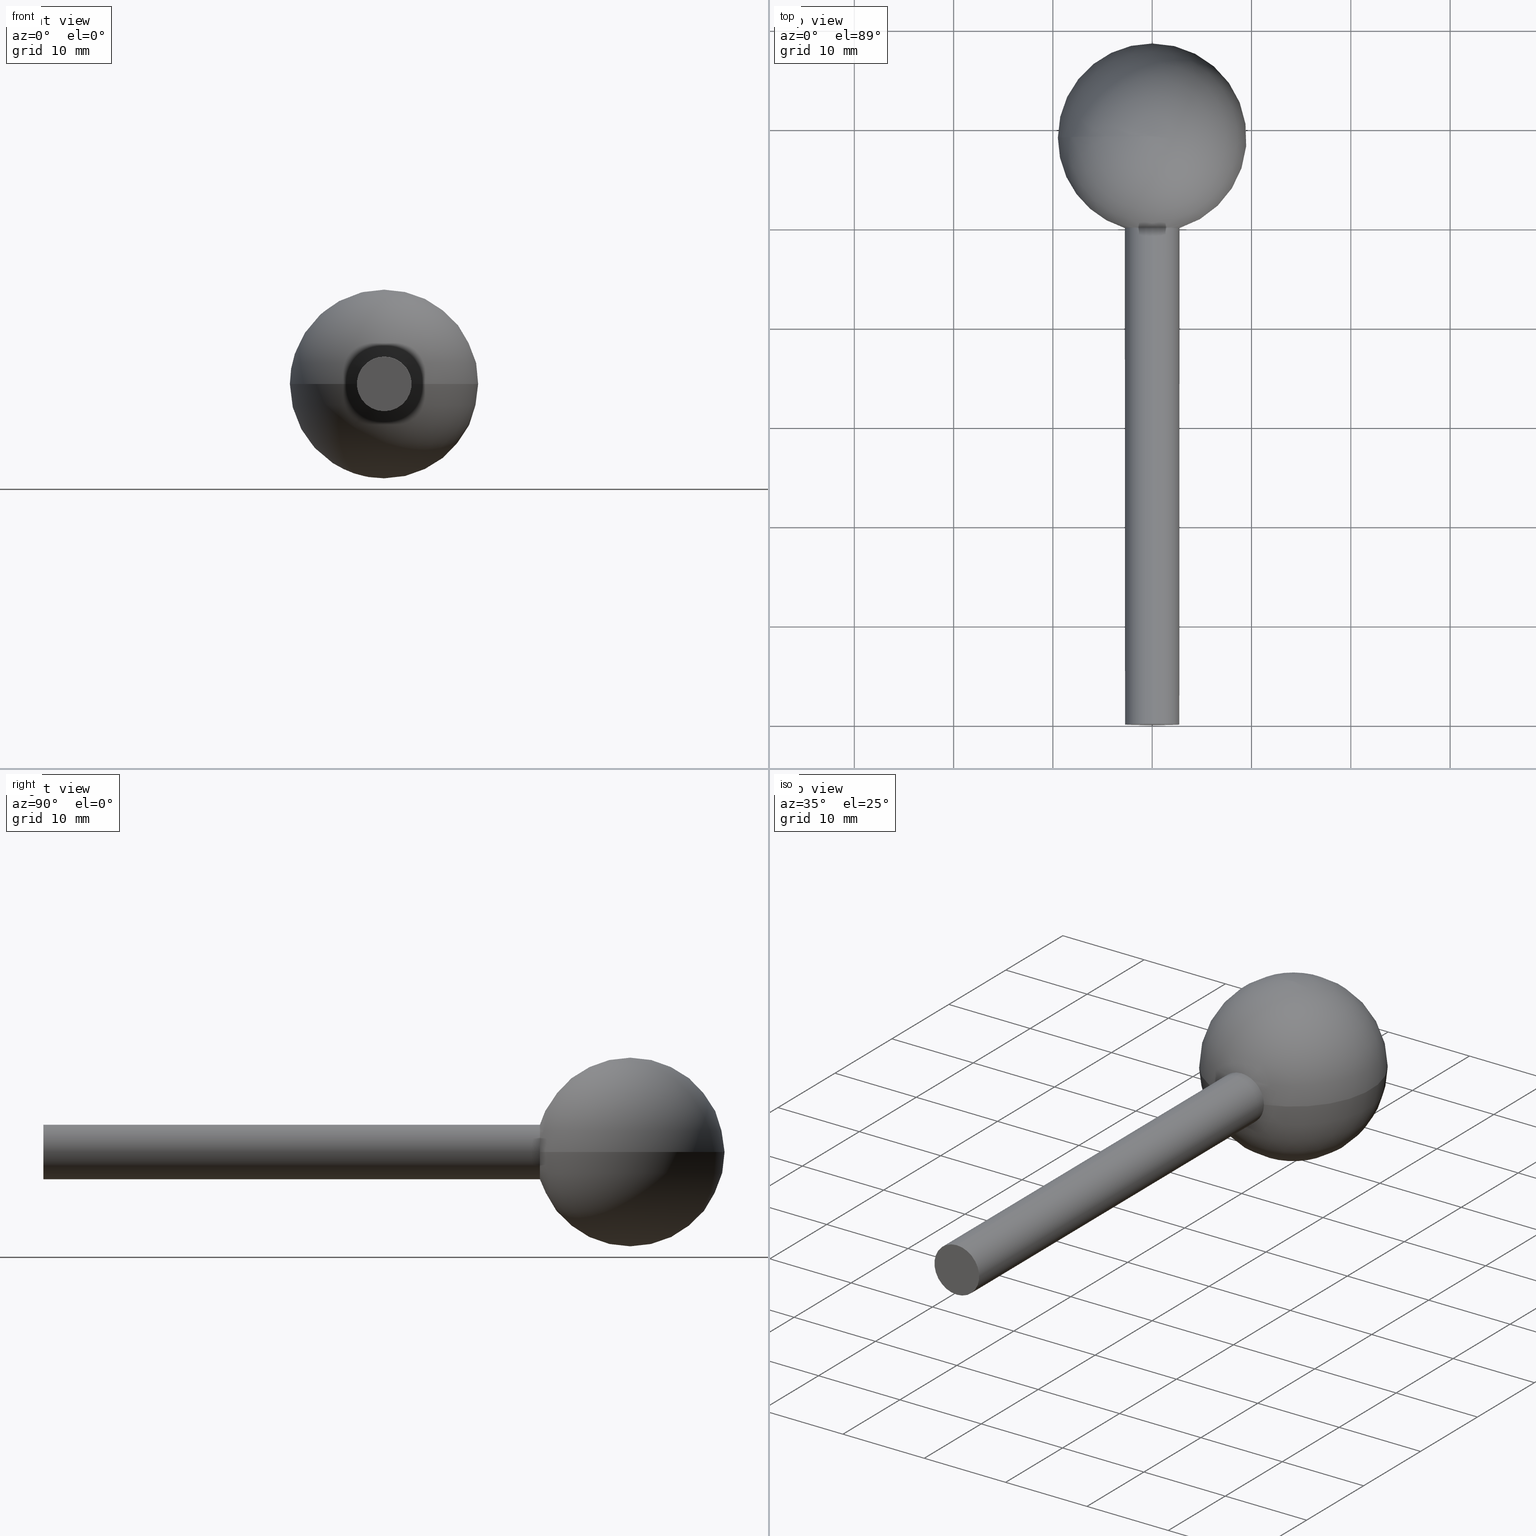
[diagram: canonical four-view strip — front | top / right | iso, engineering-drawing reading convention]
A machine part, canonical four-view strip (front | top / right | iso — engineering-drawing reading convention). The complete STEP part file that produces these views, byte-faithful:
ISO-10303-21;
HEADER;
FILE_DESCRIPTION (( 'STEP AP203' ),
    '1' );
FILE_NAME ('3504.step',
    '2015-09-17T14:56:49',
    ( '' ),
    ( '' ),
    'SwSTEP 2.0',
    'SolidWorks 2015',
    '' );
FILE_SCHEMA (( 'CONFIG_CONTROL_DESIGN' ));
ENDSEC;

DATA;
#1 = MANIFOLD_SOLID_BREP ( 'Rotation1', #23 ) ;
#2 = PRODUCT_DEFINITION ( 'UNKNOWN', '', #36, #40 ) ;
#3 = EDGE_CURVE ( 'NONE', #199, #202, #114, .T. ) ;
#4 = ORIENTED_EDGE ( 'NONE', *, *, #196, .F. ) ;
#5 = UNCERTAINTY_MEASURE_WITH_UNIT (LENGTH_MEASURE( 1.000000000000000100E-005 ), #129, 'distance_accuracy_value', 'NONE');
#6 = ORIENTED_EDGE ( 'NONE', *, *, #31, .T. ) ;
#7 = ORIENTED_EDGE ( 'NONE', *, *, #26, .T. ) ;
#8 = CC_DESIGN_APPROVAL ( #49, ( #139 ) ) ;
#9 = CC_DESIGN_PERSON_AND_ORGANIZATION_ASSIGNMENT ( #133, #89, ( #92 ) ) ;
#10 = AXIS2_PLACEMENT_3D ( 'NONE', #134, #93, #91 ) ;
#11 = ORIENTED_EDGE ( 'NONE', *, *, #28, .T. ) ;
#12 = ADVANCED_FACE ( 'NONE', ( #146 ), #112, .T. ) ;
#13 = ADVANCED_BREP_SHAPE_REPRESENTATION ( '3504', ( #1, #10 ), #32 ) ;
#14 = CC_DESIGN_APPROVAL ( #20, ( #36 ) ) ;
#15 = APPROVAL_DATE_TIME ( #22, #49 ) ;
#16 = ORIENTED_EDGE ( 'NONE', *, *, #210, .F. ) ;
#17 = CC_DESIGN_SECURITY_CLASSIFICATION ( #139, ( #36 ) ) ;
#18 = CIRCLE ( 'NONE', #138, 9.499999999999991100 ) ;
#19 = CIRCLE ( 'NONE', #68, 2.750000000000004900 ) ;
#20 = APPROVAL ( #69, 'UNSPECIFIED' ) ;
#21 = EDGE_CURVE ( 'NONE', #199, #174, #18, .T. ) ;
#22 = DATE_AND_TIME ( #25, #29 ) ;
#23 = CLOSED_SHELL ( 'NONE', ( #12, #27, #24, #50, #64 ) ) ;
#24 = ADVANCED_FACE ( 'NONE', ( #83 ), #176, .F. ) ;
#25 = CALENDAR_DATE ( 2015, 17, 9 ) ;
#26 = EDGE_CURVE ( 'NONE', #202, #104, #62, .T. ) ;
#27 = ADVANCED_FACE ( 'NONE', ( #170 ), #192, .T. ) ;
#28 = EDGE_CURVE ( 'NONE', #220, #175, #212, .T. ) ;
#29 = LOCAL_TIME ( 16, 56, 49.00000000000000000, #30 ) ;
#30 = COORDINATED_UNIVERSAL_TIME_OFFSET ( 1, 0, .AHEAD. ) ;
#31 = EDGE_CURVE ( 'NONE', #137, #202, #215, .T. ) ;
#32 =( GEOMETRIC_REPRESENTATION_CONTEXT ( 3 ) GLOBAL_UNCERTAINTY_ASSIGNED_CONTEXT ( ( #5 ) ) GLOBAL_UNIT_ASSIGNED_CONTEXT ( ( #129, #103, #100 ) ) REPRESENTATION_CONTEXT ( 'NONE', 'WORKASPACE' ) );
#33 = APPROVAL_PERSON_ORGANIZATION ( #34, #49, #98 ) ;
#34 = PERSON_AND_ORGANIZATION ( #86, #189 ) ;
#35 = AXIS2_PLACEMENT_3D ( 'NONE', #120, #118, #117 ) ;
#36 = PRODUCT_DEFINITION_FORMATION_WITH_SPECIFIED_SOURCE ( 'ANY', '', #92, .NOT_KNOWN. ) ;
#37 = DATE_AND_TIME ( #38, #39 ) ;
#38 = CALENDAR_DATE ( 2015, 17, 9 ) ;
#39 = LOCAL_TIME ( 16, 56, 49.00000000000000000, #41 ) ;
#40 = DESIGN_CONTEXT ( 'detailed design', #88, 'design' ) ;
#41 = COORDINATED_UNIVERSAL_TIME_OFFSET ( 1, 0, .AHEAD. ) ;
#42 = PERSON_AND_ORGANIZATION ( #86, #189 ) ;
#43 = PERSON_AND_ORGANIZATION ( #86, #189 ) ;
#44 = PERSON_AND_ORGANIZATION ( #86, #189 ) ;
#45 = AXIS2_PLACEMENT_3D ( 'NONE', #208, #99, #190 ) ;
#46 = APPROVAL_DATE_TIME ( #48, #20 ) ;
#47 = EDGE_LOOP ( 'NONE', ( #97, #11 ) ) ;
#48 = DATE_AND_TIME ( #55, #59 ) ;
#49 = APPROVAL ( #119, 'UNSPECIFIED' ) ;
#50 = ADVANCED_FACE ( 'NONE', ( #211 ), #206, .T. ) ;
#51 = CC_DESIGN_DATE_AND_TIME_ASSIGNMENT ( #37, #53, ( #139 ) ) ;
#52 = AXIS2_PLACEMENT_3D ( 'NONE', #164, #162, #161 ) ;
#53 = DATE_TIME_ROLE ( 'classification_date' ) ;
#54 = PERSON_AND_ORGANIZATION_ROLE ( 'classification_officer' ) ;
#55 = CALENDAR_DATE ( 2015, 17, 9 ) ;
#56 = AXIS2_PLACEMENT_3D ( 'NONE', #197, #209, #191 ) ;
#57 = ORIENTED_EDGE ( 'NONE', *, *, #155, .T. ) ;
#58 = SECURITY_CLASSIFICATION_LEVEL ( 'unclassified' ) ;
#59 = LOCAL_TIME ( 16, 56, 49.00000000000000000, #183 ) ;
#60 = PERSON_AND_ORGANIZATION_ROLE ( 'design_supplier' ) ;
#61 = PERSON_AND_ORGANIZATION_ROLE ( 'creator' ) ;
#62 = CIRCLE ( 'NONE', #108, 2.750000000000004900 ) ;
#63 = ORIENTED_EDGE ( 'NONE', *, *, #21, .F. ) ;
#64 = ADVANCED_FACE ( 'NONE', ( #151 ), #157, .T. ) ;
#65 = DIRECTION ( 'NONE',  ( -0.0000000000000000000, -0.0000000000000000000, -1.000000000000000000 ) ) ;
#66 = APPROVAL_ROLE ( '' ) ;
#67 = ORIENTED_EDGE ( 'NONE', *, *, #155, .F. ) ;
#68 = AXIS2_PLACEMENT_3D ( 'NONE', #127, #126, #125 ) ;
#69 = APPROVAL_STATUS ( 'not_yet_approved' ) ;
#70 = AXIS2_PLACEMENT_3D ( 'NONE', #195, #194, #193 ) ;
#71 = ORIENTED_EDGE ( 'NONE', *, *, #31, .F. ) ;
#72 = ORIENTED_EDGE ( 'NONE', *, *, #21, .T. ) ;
#73 = ORIENTED_EDGE ( 'NONE', *, *, #3, .F. ) ;
#74 = CC_DESIGN_DATE_AND_TIME_ASSIGNMENT ( #101, #76, ( #2 ) ) ;
#75 = ORIENTED_EDGE ( 'NONE', *, *, #26, .F. ) ;
#76 = DATE_TIME_ROLE ( 'creation_date' ) ;
#77 = AXIS2_PLACEMENT_3D ( 'NONE', #132, #65, #213 ) ;
#78 = PERSON_AND_ORGANIZATION_ROLE ( 'creator' ) ;
#79 = APPROVAL_ROLE ( '' ) ;
#80 = ORIENTED_EDGE ( 'NONE', *, *, #3, .T. ) ;
#81 = APPROVAL_STATUS ( 'not_yet_approved' ) ;
#82 = AXIS2_PLACEMENT_3D ( 'NONE', #204, #203, #198 ) ;
#83 = FACE_OUTER_BOUND ( 'NONE', #47, .T. ) ;
#84 = APPLICATION_PROTOCOL_DEFINITION ( 'international standard', 'config_control_design', 1994, #88 ) ;
#85 = CC_DESIGN_PERSON_AND_ORGANIZATION_ASSIGNMENT ( #110, #78, ( #2 ) ) ;
#86 = PERSON ( 'UNSPECIFIED', 'UNSPECIFIED', 'UNSPECIFIED', ('UNSPECIFIED'), ('UNSPECIFIED'), ('UNSPECIFIED') ) ;
#87 = EDGE_LOOP ( 'NONE', ( #73, #72, #140, #75 ) ) ;
#88 = APPLICATION_CONTEXT ( 'configuration controlled 3d designs of mechanical parts and assemblies' ) ;
#89 = PERSON_AND_ORGANIZATION_ROLE ( 'design_owner' ) ;
#90 = MECHANICAL_CONTEXT ( 'NONE', #94, 'mechanical' ) ;
#91 = DIRECTION ( 'NONE',  ( 1.000000000000000000, 0.0000000000000000000, 0.0000000000000000000 ) ) ;
#92 = PRODUCT ( '3504', '3504', '', ( #90 ) ) ;
#93 = DIRECTION ( 'NONE',  ( 0.0000000000000000000, 0.0000000000000000000, 1.000000000000000000 ) ) ;
#94 = APPLICATION_CONTEXT ( 'configuration controlled 3d designs of mechanical parts and assemblies' ) ;
#95 = EDGE_LOOP ( 'NONE', ( #142, #201, #124, #67, #147 ) ) ;
#96 = APPLICATION_PROTOCOL_DEFINITION ( 'international standard', 'config_control_design', 1994, #94 ) ;
#97 = ORIENTED_EDGE ( 'NONE', *, *, #216, .T. ) ;
#98 = APPROVAL_ROLE ( '' ) ;
#99 = DIRECTION ( 'NONE',  ( -0.0000000000000000000, -1.000000000000000000, -0.0000000000000000000 ) ) ;
#100 =( NAMED_UNIT ( * ) SI_UNIT ( $, .STERADIAN. ) SOLID_ANGLE_UNIT ( ) );
#101 = DATE_AND_TIME ( #102, #107 ) ;
#102 = CALENDAR_DATE ( 2015, 17, 9 ) ;
#103 =( NAMED_UNIT ( * ) PLANE_ANGLE_UNIT ( ) SI_UNIT ( $, .RADIAN. ) );
#104 = VERTEX_POINT ( 'NONE', #168 ) ;
#105 = EDGE_LOOP ( 'NONE', ( #4, #6, #7, #57, #113 ) ) ;
#106 = AXIS2_PLACEMENT_3D ( 'NONE', #149, #221, #159 ) ;
#107 = LOCAL_TIME ( 16, 56, 49.00000000000000000, #109 ) ;
#108 = AXIS2_PLACEMENT_3D ( 'NONE', #219, #217, #214 ) ;
#109 = COORDINATED_UNIVERSAL_TIME_OFFSET ( 1, 0, .AHEAD. ) ;
#110 = PERSON_AND_ORGANIZATION ( #86, #189 ) ;
#111 = CC_DESIGN_PERSON_AND_ORGANIZATION_ASSIGNMENT ( #43, #60, ( #36 ) ) ;
#112 = CYLINDRICAL_SURFACE ( 'NONE', #121, 2.750000000000002700 ) ;
#113 = ORIENTED_EDGE ( 'NONE', *, *, #28, .F. ) ;
#114 = CIRCLE ( 'NONE', #187, 9.499999999999991100 ) ;
#115 = APPROVAL_DATE_TIME ( #116, #169 ) ;
#116 = DATE_AND_TIME ( #188, #185 ) ;
#117 = DIRECTION ( 'NONE',  ( 0.0000000000000000000, 0.0000000000000000000, -1.000000000000000000 ) ) ;
#118 = DIRECTION ( 'NONE',  ( -0.0000000000000000000, -1.000000000000000000, -0.0000000000000000000 ) ) ;
#119 = APPROVAL_STATUS ( 'not_yet_approved' ) ;
#120 = CARTESIAN_POINT ( 'NONE',  ( 0.0000000000000000000, -3.367778697655221000E-016, 0.0000000000000000000 ) ) ;
#121 = AXIS2_PLACEMENT_3D ( 'NONE', #167, #128, #182 ) ;
#122 = CARTESIAN_POINT ( 'NONE',  ( 2.750000000000007500, 50.00000000000001400, -3.367778697655230400E-016 ) ) ;
#123 = APPROVAL_PERSON_ORGANIZATION ( #131, #169, #79 ) ;
#124 = ORIENTED_EDGE ( 'NONE', *, *, #216, .F. ) ;
#125 = DIRECTION ( 'NONE',  ( 0.0000000000000000000, 0.0000000000000000000, -1.000000000000000000 ) ) ;
#126 = DIRECTION ( 'NONE',  ( -0.0000000000000000000, -1.000000000000000000, -0.0000000000000000000 ) ) ;
#127 = CARTESIAN_POINT ( 'NONE',  ( 0.0000000000000000000, 50.00000000000001400, 0.0000000000000000000 ) ) ;
#128 = DIRECTION ( 'NONE',  ( -0.0000000000000000000, -1.000000000000000000, -0.0000000000000000000 ) ) ;
#129 =( LENGTH_UNIT ( ) NAMED_UNIT ( * ) SI_UNIT ( .MILLI., .METRE. ) );
#130 = CARTESIAN_POINT ( 'NONE',  ( 0.0000000000000000000, 59.09326673973661300, 0.0000000000000000000 ) ) ;
#131 = PERSON_AND_ORGANIZATION ( #86, #189 ) ;
#132 = CARTESIAN_POINT ( 'NONE',  ( 0.0000000000000000000, 59.09326673973661300, 0.0000000000000000000 ) ) ;
#133 = PERSON_AND_ORGANIZATION ( #86, #189 ) ;
#134 = CARTESIAN_POINT ( 'NONE',  ( 0.0000000000000000000, 0.0000000000000000000, 0.0000000000000000000 ) ) ;
#135 = CARTESIAN_POINT ( 'NONE',  ( 3.367778697655223000E-016, -3.367778697655221000E-016, 2.750000000000000000 ) ) ;
#136 = DIRECTION ( 'NONE',  ( -1.000000000000000000, 0.0000000000000000000, 1.224646799147353200E-016 ) ) ;
#137 = VERTEX_POINT ( 'NONE', #179 ) ;
#138 = AXIS2_PLACEMENT_3D ( 'NONE', #130, #160, #136 ) ;
#139 = SECURITY_CLASSIFICATION ( '', '', #58 ) ;
#140 = ORIENTED_EDGE ( 'NONE', *, *, #150, .F. ) ;
#141 = CARTESIAN_POINT ( 'NONE',  ( -2.750000000000007500, 50.00000000000001400, 0.0000000000000000000 ) ) ;
#142 = ORIENTED_EDGE ( 'NONE', *, *, #210, .T. ) ;
#143 = VECTOR ( 'NONE', #154, 1000.000000000000000 ) ;
#144 = LINE ( 'NONE', #166, #143 ) ;
#145 = SHAPE_DEFINITION_REPRESENTATION ( #173, #13 ) ;
#146 = FACE_OUTER_BOUND ( 'NONE', #95, .T. ) ;
#147 = ORIENTED_EDGE ( 'NONE', *, *, #150, .T. ) ;
#148 = VECTOR ( 'NONE', #186, 1000.000000000000000 ) ;
#149 = CARTESIAN_POINT ( 'NONE',  ( 0.0000000000000000000, -1.683889348827610500E-016, 0.0000000000000000000 ) ) ;
#150 = EDGE_CURVE ( 'NONE', #104, #174, #156, .T. ) ;
#151 = FACE_OUTER_BOUND ( 'NONE', #105, .T. ) ;
#152 = CARTESIAN_POINT ( 'NONE',  ( -5.817072295949922500E-016, 68.59326673973660600, 0.0000000000000000000 ) ) ;
#153 = LINE ( 'NONE', #165, #148 ) ;
#154 = DIRECTION ( 'NONE',  ( -0.0000000000000000000, -1.000000000000000000, -0.0000000000000000000 ) ) ;
#155 = EDGE_CURVE ( 'NONE', #104, #175, #153, .T. ) ;
#156 = CIRCLE ( 'NONE', #52, 2.750000000000004900 ) ;
#157 = CYLINDRICAL_SURFACE ( 'NONE', #45, 2.750000000000002700 ) ;
#158 = CARTESIAN_POINT ( 'NONE',  ( 0.0000000000000000000, -3.367778697655221000E-016, -2.750000000000000000 ) ) ;
#159 = DIRECTION ( 'NONE',  ( 0.0000000000000000000, -0.0000000000000000000, 1.000000000000000000 ) ) ;
#160 = DIRECTION ( 'NONE',  ( -1.224646799147353200E-016, 0.0000000000000000000, -1.000000000000000000 ) ) ;
#161 = DIRECTION ( 'NONE',  ( 0.0000000000000000000, 0.0000000000000000000, -1.000000000000000000 ) ) ;
#162 = DIRECTION ( 'NONE',  ( -0.0000000000000000000, -1.000000000000000000, -0.0000000000000000000 ) ) ;
#163 = PRODUCT_RELATED_PRODUCT_CATEGORY ( 'detail', '', ( #92 ) ) ;
#164 = CARTESIAN_POINT ( 'NONE',  ( 0.0000000000000000000, 50.00000000000001400, 0.0000000000000000000 ) ) ;
#165 = CARTESIAN_POINT ( 'NONE',  ( 0.0000000000000000000, 0.0000000000000000000, -2.750000000000002700 ) ) ;
#166 = CARTESIAN_POINT ( 'NONE',  ( 3.367778697655224500E-016, 0.0000000000000000000, 2.750000000000002700 ) ) ;
#167 = CARTESIAN_POINT ( 'NONE',  ( 0.0000000000000000000, 0.0000000000000000000, 0.0000000000000000000 ) ) ;
#168 = CARTESIAN_POINT ( 'NONE',  ( 0.0000000000000000000, 50.00000000000001400, -2.750000000000004900 ) ) ;
#169 = APPROVAL ( #81, 'UNSPECIFIED' ) ;
#170 = FACE_OUTER_BOUND ( 'NONE', #87, .T. ) ;
#171 = CC_DESIGN_PERSON_AND_ORGANIZATION_ASSIGNMENT ( #42, #54, ( #139 ) ) ;
#172 = CIRCLE ( 'NONE', #35, 2.750000000000000000 ) ;
#173 = PRODUCT_DEFINITION_SHAPE ( 'NONE', 'NONE',  #2 ) ;
#174 = VERTEX_POINT ( 'NONE', #122 ) ;
#175 = VERTEX_POINT ( 'NONE', #158 ) ;
#176 = PLANE ( 'NONE',  #106 ) ;
#177 = PERSON_AND_ORGANIZATION ( #86, #189 ) ;
#178 = EDGE_LOOP ( 'NONE', ( #63, #80, #71, #16 ) ) ;
#179 = CARTESIAN_POINT ( 'NONE',  ( 3.367778697655227400E-016, 50.00000000000001400, 2.750000000000004900 ) ) ;
#180 = APPROVAL_PERSON_ORGANIZATION ( #177, #20, #66 ) ;
#181 = DIRECTION ( 'NONE',  ( 1.000000000000000000, 0.0000000000000000000, 0.0000000000000000000 ) ) ;
#182 = DIRECTION ( 'NONE',  ( 0.0000000000000000000, 0.0000000000000000000, -1.000000000000000000 ) ) ;
#183 = COORDINATED_UNIVERSAL_TIME_OFFSET ( 1, 0, .AHEAD. ) ;
#184 = COORDINATED_UNIVERSAL_TIME_OFFSET ( 1, 0, .AHEAD. ) ;
#185 = LOCAL_TIME ( 16, 56, 49.00000000000000000, #184 ) ;
#186 = DIRECTION ( 'NONE',  ( -0.0000000000000000000, -1.000000000000000000, -0.0000000000000000000 ) ) ;
#187 = AXIS2_PLACEMENT_3D ( 'NONE', #200, #218, #181 ) ;
#188 = CALENDAR_DATE ( 2015, 17, 9 ) ;
#189 = ORGANIZATION ( 'UNSPECIFIED', 'UNSPECIFIED', '' ) ;
#190 = DIRECTION ( 'NONE',  ( 0.0000000000000000000, 0.0000000000000000000, -1.000000000000000000 ) ) ;
#191 = DIRECTION ( 'NONE',  ( -1.000000000000000000, 0.0000000000000000000, 0.0000000000000000000 ) ) ;
#192 = SPHERICAL_SURFACE ( 'NONE', #77, 9.499999999999991100 ) ;
#193 = DIRECTION ( 'NONE',  ( 0.0000000000000000000, 0.0000000000000000000, -1.000000000000000000 ) ) ;
#194 = DIRECTION ( 'NONE',  ( -0.0000000000000000000, -1.000000000000000000, -0.0000000000000000000 ) ) ;
#195 = CARTESIAN_POINT ( 'NONE',  ( 0.0000000000000000000, 50.00000000000001400, 0.0000000000000000000 ) ) ;
#196 = EDGE_CURVE ( 'NONE', #137, #220, #144, .T. ) ;
#197 = CARTESIAN_POINT ( 'NONE',  ( 0.0000000000000000000, 59.09326673973661300, 0.0000000000000000000 ) ) ;
#198 = DIRECTION ( 'NONE',  ( 0.0000000000000000000, 0.0000000000000000000, -1.000000000000000000 ) ) ;
#199 = VERTEX_POINT ( 'NONE', #152 ) ;
#200 = CARTESIAN_POINT ( 'NONE',  ( 0.0000000000000000000, 59.09326673973661300, 0.0000000000000000000 ) ) ;
#201 = ORIENTED_EDGE ( 'NONE', *, *, #196, .T. ) ;
#202 = VERTEX_POINT ( 'NONE', #141 ) ;
#203 = DIRECTION ( 'NONE',  ( -0.0000000000000000000, -1.000000000000000000, -0.0000000000000000000 ) ) ;
#204 = CARTESIAN_POINT ( 'NONE',  ( 0.0000000000000000000, -3.367778697655221000E-016, 0.0000000000000000000 ) ) ;
#205 = CC_DESIGN_PERSON_AND_ORGANIZATION_ASSIGNMENT ( #44, #61, ( #36 ) ) ;
#206 = SPHERICAL_SURFACE ( 'NONE', #56, 9.499999999999991100 ) ;
#207 = CC_DESIGN_APPROVAL ( #169, ( #2 ) ) ;
#208 = CARTESIAN_POINT ( 'NONE',  ( 0.0000000000000000000, 0.0000000000000000000, 0.0000000000000000000 ) ) ;
#209 = DIRECTION ( 'NONE',  ( -0.0000000000000000000, -0.0000000000000000000, -1.000000000000000000 ) ) ;
#210 = EDGE_CURVE ( 'NONE', #174, #137, #19, .T. ) ;
#211 = FACE_OUTER_BOUND ( 'NONE', #178, .T. ) ;
#212 = CIRCLE ( 'NONE', #82, 2.750000000000000000 ) ;
#213 = DIRECTION ( 'NONE',  ( -1.000000000000000000, 0.0000000000000000000, 0.0000000000000000000 ) ) ;
#214 = DIRECTION ( 'NONE',  ( 0.0000000000000000000, 0.0000000000000000000, -1.000000000000000000 ) ) ;
#215 = CIRCLE ( 'NONE', #70, 2.750000000000004900 ) ;
#216 = EDGE_CURVE ( 'NONE', #175, #220, #172, .T. ) ;
#217 = DIRECTION ( 'NONE',  ( -0.0000000000000000000, -1.000000000000000000, -0.0000000000000000000 ) ) ;
#218 = DIRECTION ( 'NONE',  ( -0.0000000000000000000, 0.0000000000000000000, 1.000000000000000000 ) ) ;
#219 = CARTESIAN_POINT ( 'NONE',  ( 0.0000000000000000000, 50.00000000000001400, 0.0000000000000000000 ) ) ;
#220 = VERTEX_POINT ( 'NONE', #135 ) ;
#221 = DIRECTION ( 'NONE',  ( 0.0000000000000000000, 1.000000000000000000, 0.0000000000000000000 ) ) ;
ENDSEC;
END-ISO-10303-21;
